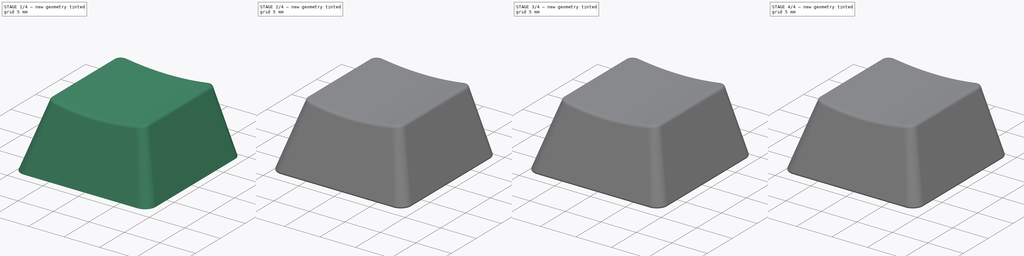
[diagram: build sequence overview — one tinted view per stage of 4, left to right]
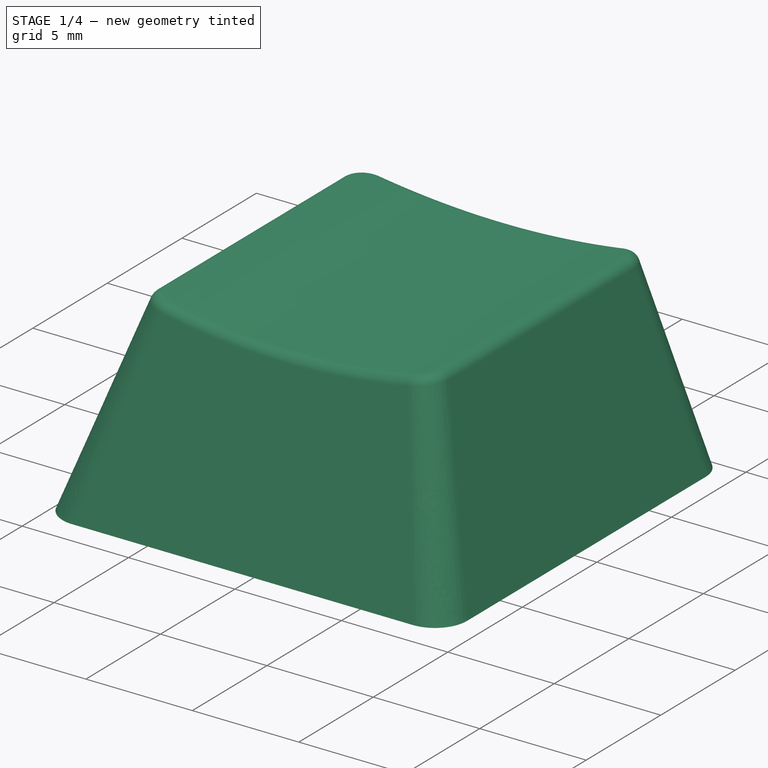
[diagram: stage 1 of 4 — iso view after this stage's code; geometry added in this stage tinted green]
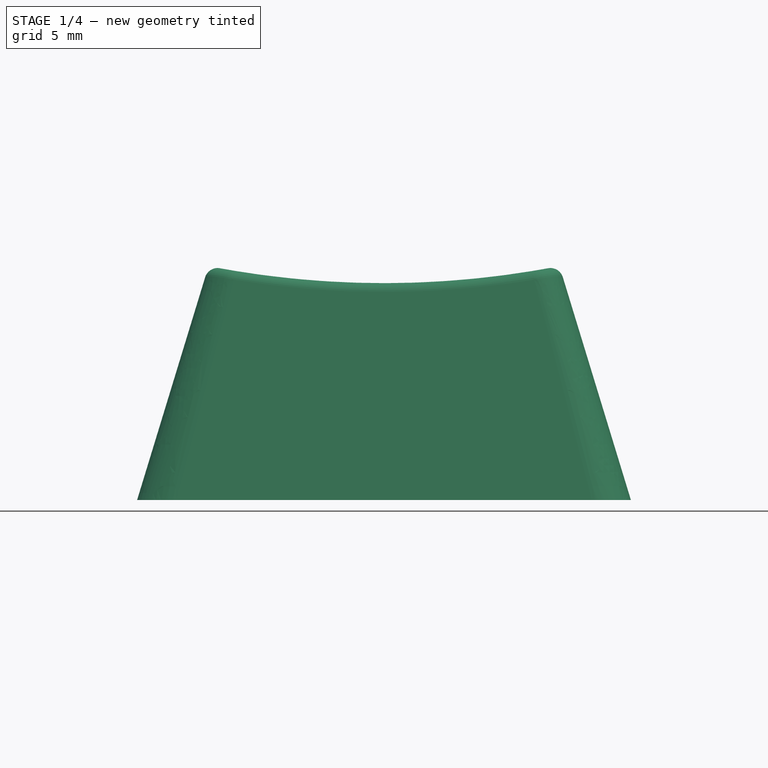
[diagram: stage 1 of 4 — front view after this stage's code; geometry added in this stage tinted green]
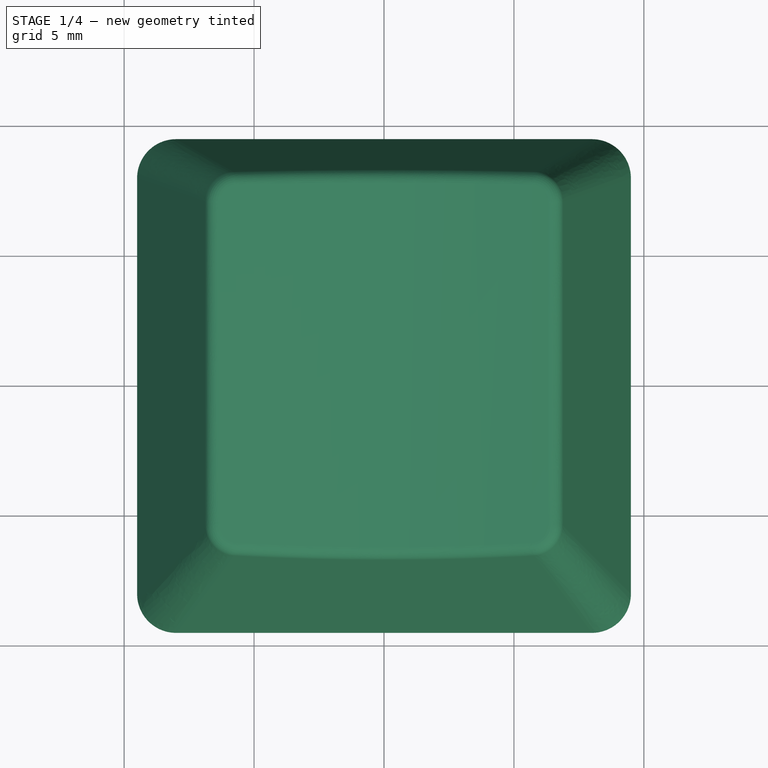
[diagram: stage 1 of 4 — top view after this stage's code; geometry added in this stage tinted green]
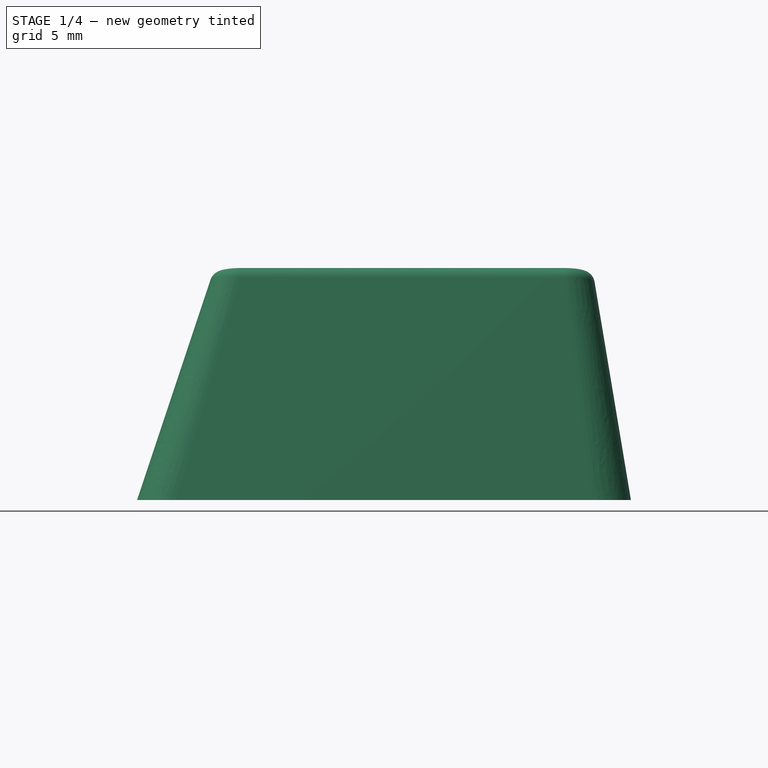
[diagram: stage 1 of 4 — right view after this stage's code; geometry added in this stage tinted green]
FCSTD DOCUMENT  (FreeCAD 0.18R4 (GitTag))
Label: keycap
License: All rights reserved
LicenseURL: http://en.wikipedia.org/wiki/All_rights_reserved
objects: Sketcher::SketchObject×7, PartDesign::Fillet×5, PartDesign::Plane×3, PartDesign::Pocket×2, PartDesign::AdditiveLoft×1, PartDesign::SubtractiveLoft×1, PartDesign::Pad×1, PartDesign::Mirrored×1, PartDesign::Body×1
note: 27 computed .brp shape members not serialized (recipe doc carries the construction recipe); baked Part::Feature solids carry a one-line shape summary decoded from their .brp

FEATURE [Sketcher::SketchObject] Sketch
  MapMode = 5
  Support = -> [XY_Plane]
  sketch-geometry (8):
    g0: LineSegment StartX=-8 StartY=9.5 StartZ=0 EndX=8 EndY=9.5 EndZ=0
    g1: ArcOfCircle CenterX=8 CenterY=8 CenterZ=0 NormalX=0 NormalY=0 NormalZ=1 AngleXU=0 Radius=1.5 StartAngle=2e-16 EndAngle=1.5708
    g2: LineSegment StartX=9.5 StartY=8 StartZ=0 EndX=9.5 EndY=-8 EndZ=0
    g3: ArcOfCircle CenterX=8 CenterY=-8 CenterZ=0 NormalX=0 NormalY=0 NormalZ=1 AngleXU=0 Radius=1.5 StartAngle=4.71239 EndAngle=6.28319
    g4: LineSegment StartX=8 StartY=-9.5 StartZ=0 EndX=-8 EndY=-9.5 EndZ=0
    g5: ArcOfCircle CenterX=-8 CenterY=-8 CenterZ=0 NormalX=0 NormalY=0 NormalZ=1 AngleXU=0 Radius=1.5 StartAngle=3.14159 EndAngle=4.71239
    g6: LineSegment StartX=-9.5 StartY=-8 StartZ=0 EndX=-9.5 EndY=8 EndZ=0
    g7: ArcOfCircle CenterX=-8 CenterY=8 CenterZ=0 NormalX=0 NormalY=0 NormalZ=1 AngleXU=0 Radius=1.5 StartAngle=1.5708 EndAngle=3.14159
  constraints (18):
    c: Tangent(g0,g1) = 1.5708
    c: Vertical(g2)
    c: Tangent(g2,g3) = 1.5708
    c: Horizontal(g4)
    c: Tangent(g4,g5) = 1.5708
    c: Tangent(g6,g7) = 1.5708
    c: Tangent(g7,g0) = 1.5708
    c: Tangent(g1,g2) = 1.5708
    c: Tangent(g3,g4) = 1.5708
    c: Tangent(g5,g6) = 1.5708
    c: Equal(g5,g3)
    c: Equal(g6,g4)
    c: Equal(g4,g2)
    c: Equal(g2,g0)
    c: Symmetric(g5,g6,g-1)
    c: Symmetric(g0,g0,g-2)
    c: Radius(g1) = 1.5
    c: DistanceY(g3,g0) = 19
FEATURE [PartDesign::Plane] DatumPlane
  AttachmentOffset = pos=(0,0,9) rot=(0,0,1;0rad)
  Length = 24
  MapMode = 5
  Placement = pos=(0,0,9) rot=(0,0,1;0rad)
  ResizeMode = 0
  Support = -> [XY_Plane]
  Width = 24
FEATURE [Sketcher::SketchObject] Sketch001
  ExternalGeometry = -> [Sketch]
  MapMode = 5
  Placement = pos=(0,0,9) rot=(0,0,1;0rad)
  Support = -> [DatumPlane]
  sketch-geometry (8):
    g0: LineSegment StartX=-5.65 StartY=8 StartZ=0 EndX=5.65 EndY=8 EndZ=0
    g1: ArcOfCircle CenterX=5.65 CenterY=6.9 CenterZ=0 NormalX=0 NormalY=0 NormalZ=1 AngleXU=0 Radius=1.1 StartAngle=4e-16 EndAngle=1.5708
    g2: LineSegment StartX=6.75 StartY=6.9 StartZ=0 EndX=6.75 EndY=-5.4 EndZ=0
    g3: ArcOfCircle CenterX=5.65 CenterY=-5.4 CenterZ=0 NormalX=0 NormalY=0 NormalZ=1 AngleXU=0 Radius=1.1 StartAngle=4.71239 EndAngle=6.28319
    g4: LineSegment StartX=5.65 StartY=-6.5 StartZ=0 EndX=-5.65 EndY=-6.5 EndZ=0
    g5: ArcOfCircle CenterX=-5.65 CenterY=-5.4 CenterZ=0 NormalX=0 NormalY=0 NormalZ=1 AngleXU=0 Radius=1.1 StartAngle=3.14159 EndAngle=4.71239
    g6: LineSegment StartX=-6.75 StartY=-5.4 StartZ=0 EndX=-6.75 EndY=6.9 EndZ=0
    g7: ArcOfCircle CenterX=-5.65 CenterY=6.9 CenterZ=0 NormalX=0 NormalY=0 NormalZ=1 AngleXU=0 Radius=1.1 StartAngle=1.5708 EndAngle=3.14159
  constraints (19):
    c: Tangent(g0,g1) = 1.5708
    c: Vertical(g2)
    c: Tangent(g2,g3) = 1.5708
    c: Horizontal(g4)
    c: Tangent(g4,g5) = 1.5708
    c: Vertical(g6)
    c: Tangent(g6,g7) = 1.5708
    c: Tangent(g0,g7) = 1.5708
    c: Tangent(g1,g2) = 1.5708
    c: Tangent(g5,g6) = 1.5708
    c: Tangent(g3,g4) = 1.5708
    c: Radius(g7) = 1.1
    c: Equal(g7,g1)
    c: Equal(g1,g3)
    c: Equal(g0,g4)
    c: Symmetric(g0,g0,g-2)
    c: DistanceY(g3,g0) = 14.5
    c: DistanceX(g6,g1) = 13.5
    c: DistanceY(g0,g-3) = 1.5
FEATURE [PartDesign::AdditiveLoft] AdditiveLoft
  Closed = false
  Profile = -> Sketch
  Ruled = false
  Sections = -> [Sketch001]
FEATURE [Sketcher::SketchObject] Sketch002
  ExternalGeometry = -> [AdditiveLoft]
  MapMode = 5
  Placement = pos=(0,0,0) rot=(1,0,0;1.5708rad)
  Support = -> [XZ_Plane]
  sketch-geometry (1):
    g0: Circle CenterX=0 CenterY=43.3429 CenterZ=0 NormalX=0 NormalY=0 NormalZ=1 AngleXU=0 Radius=35
  constraints (4):
    c: PointOnObject(g0,g-2)
    c: PointOnObject(g-4,g0)
    c: Radius(g0) = 35
    c: DistanceY(g-4) = 9
FEATURE [PartDesign::Pocket] Pocket
  BaseFeature = -> AdditiveLoft
  Length = 12
  Length2 = 100
  Profile = -> Sketch002
  Type = 4
FEATURE [PartDesign::Fillet] Fillet
  Base = -> Pocket [Edge18]
  BaseFeature = -> Pocket
  Radius = 0.5
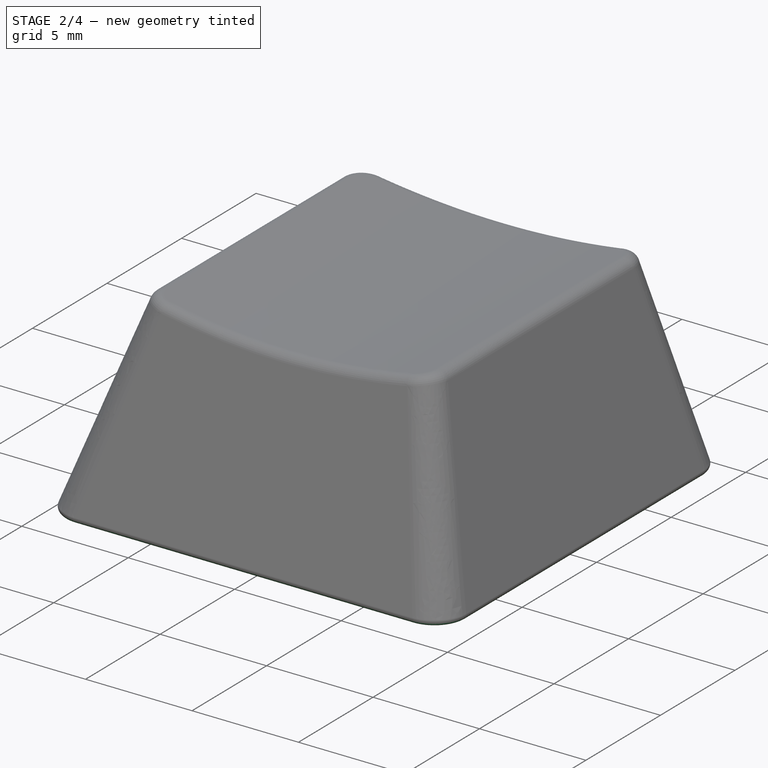
[diagram: stage 2 of 4 — iso view after this stage's code; geometry added in this stage tinted green]
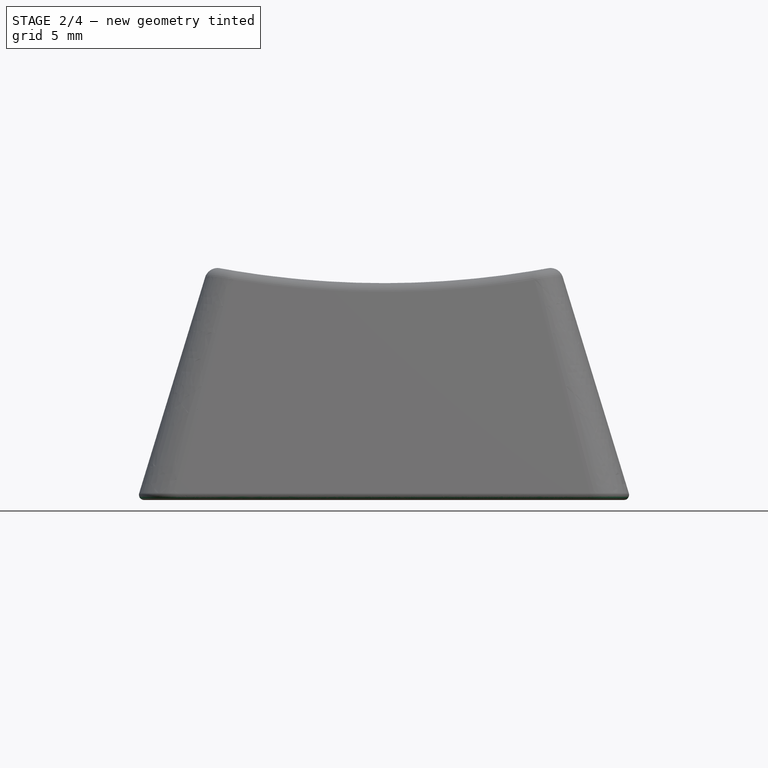
[diagram: stage 2 of 4 — front view after this stage's code; geometry added in this stage tinted green]
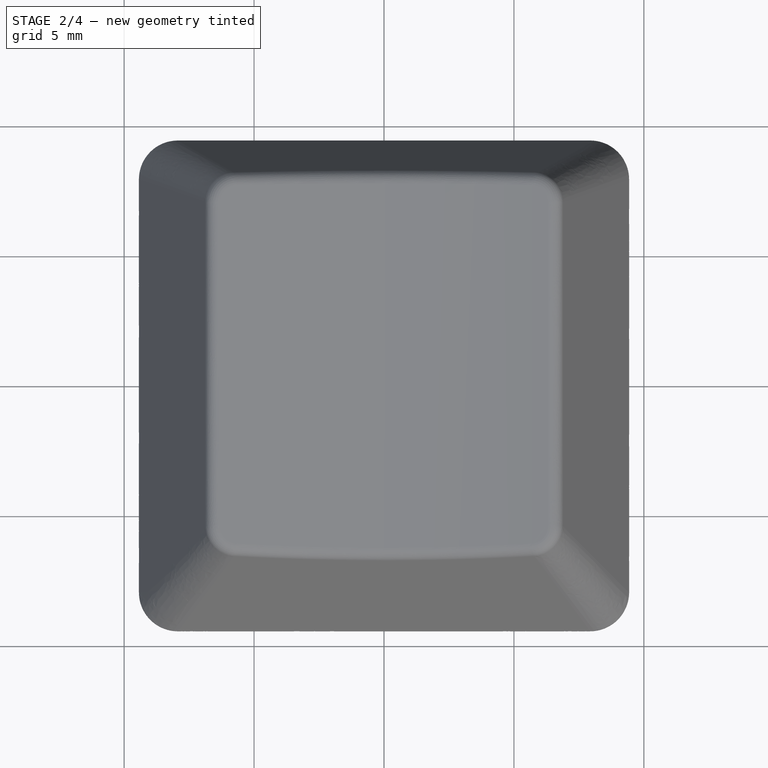
[diagram: stage 2 of 4 — top view after this stage's code; geometry added in this stage tinted green]
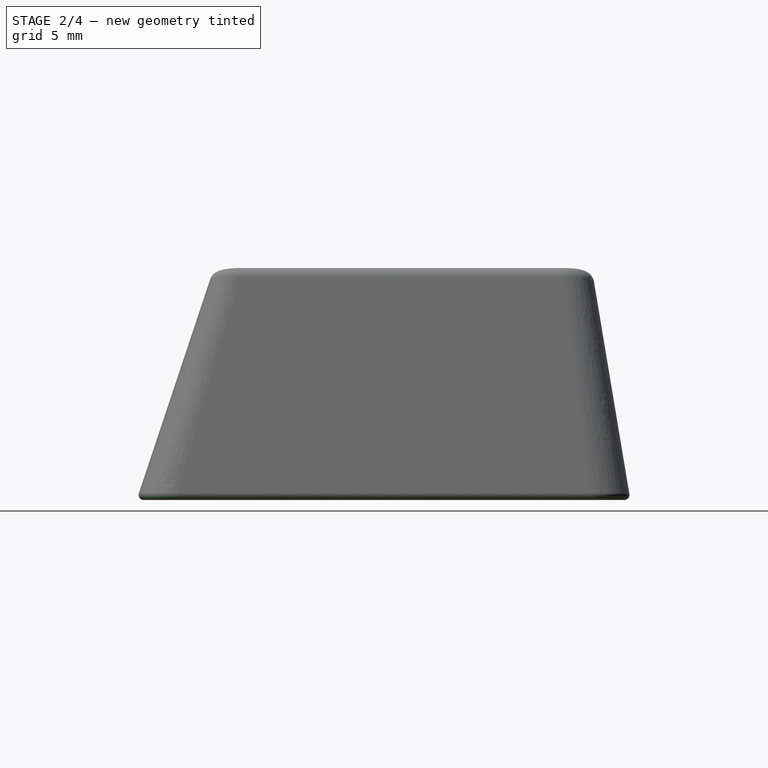
[diagram: stage 2 of 4 — right view after this stage's code; geometry added in this stage tinted green]
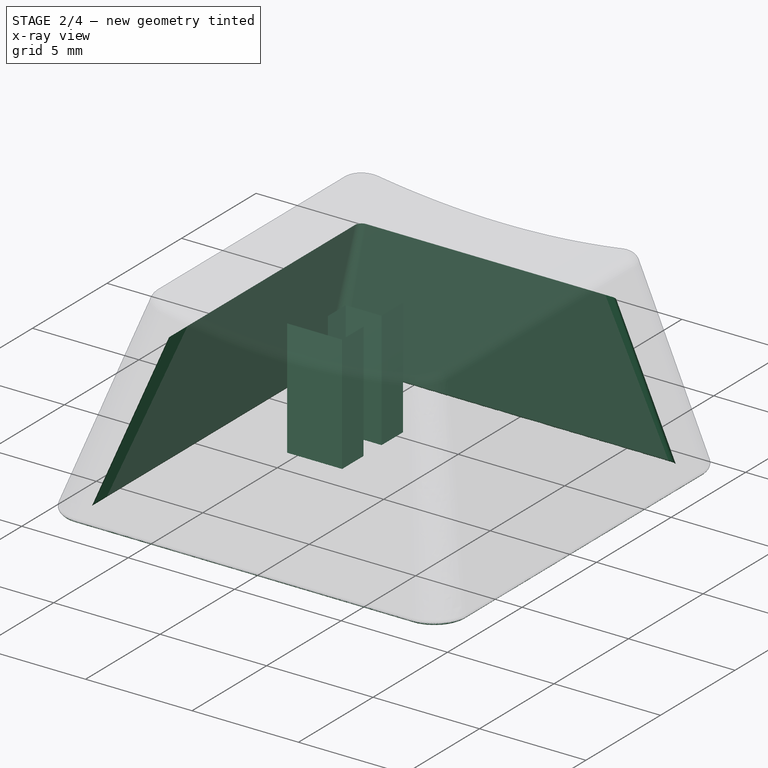
[diagram: stage 2 of 4 — x-ray composite at the iso view; earlier geometry ghosted, this stage's added geometry solid]
FEATURE [Sketcher::SketchObject] Sketch003
  ExternalGeometry = -> [Fillet]
  MapMode = 5
  Placement = pos=(0,0,0) rot=(1,0,0;3.14159rad)
  Support = -> [Fillet]
  sketch-geometry (8):
    g0: LineSegment StartX=7.75 StartY=8.25 StartZ=0 EndX=-7.75 EndY=8.25 EndZ=0
    g1: ArcOfCircle CenterX=-7.75 CenterY=7.75 CenterZ=0 NormalX=0 NormalY=0 NormalZ=1 AngleXU=0 Radius=0.5 StartAngle=1.5708 EndAngle=3.14159
    g2: LineSegment StartX=-8.25 StartY=7.75 StartZ=0 EndX=-8.25 EndY=-7.75 EndZ=0
    g3: ArcOfCircle CenterX=-7.75 CenterY=-7.75 CenterZ=0 NormalX=0 NormalY=0 NormalZ=1 AngleXU=0 Radius=0.5 StartAngle=3.14159 EndAngle=4.71239
    g4: LineSegment StartX=-7.75 StartY=-8.25 StartZ=0 EndX=7.75 EndY=-8.25 EndZ=0
    g5: ArcOfCircle CenterX=7.75 CenterY=-7.75 CenterZ=0 NormalX=0 NormalY=0 NormalZ=1 AngleXU=0 Radius=0.5 StartAngle=4.71239 EndAngle=6.28319
    g6: LineSegment StartX=8.25 StartY=-7.75 StartZ=0 EndX=8.25 EndY=7.75 EndZ=0
    g7: ArcOfCircle CenterX=7.75 CenterY=7.75 CenterZ=0 NormalX=0 NormalY=0 NormalZ=1 AngleXU=0 Radius=0.5 StartAngle=0 EndAngle=1.5708
  constraints (18):
    c: Tangent(g0,g1) = -1.5708
    c: Tangent(g2,g3) = -1.5708
    c: Horizontal(g4)
    c: Tangent(g4,g5) = -1.5708
    c: Vertical(g6)
    c: Tangent(g6,g7) = -1.5708
    c: Tangent(g7,g0) = -1.5708
    c: Tangent(g1,g2) = -1.5708
    c: Tangent(g3,g4) = -1.5708
    c: Tangent(g5,g6) = -1.5708
    c: Equal(g1,g7)
    c: Equal(g7,g5)
    c: Equal(g5,g3)
    c: Radius(g1) = 0.5
    c: Symmetric(g0,g0,g-2)
    c: Symmetric(g2,g1,g-1)
    c: DistanceX(g1,g6) = 16.5
    c: DistanceY(g3,g0) = 16.5
FEATURE [PartDesign::Plane] DatumPlane001
  AttachmentOffset = pos=(0,0,-7) rot=(0,0,1;0rad)
  Length = 24
  MapMode = 2
  Placement = pos=(0,0,7) rot=(1,0,0;3.14159rad)
  ResizeMode = 0
  Support = -> [Sketch003]
  Width = 24
FEATURE [Sketcher::SketchObject] Sketch004
  MapMode = 5
  Placement = pos=(0,0,7) rot=(1,0,0;3.14159rad)
  Support = -> [DatumPlane001]
  sketch-geometry (8):
    g0: LineSegment StartX=-5.8 StartY=5.925 StartZ=0 EndX=5.8 EndY=5.925 EndZ=0
    g1: ArcOfCircle CenterX=5.8 CenterY=5.625 CenterZ=0 NormalX=0 NormalY=0 NormalZ=1 AngleXU=0 Radius=0.3 StartAngle=-9e-16 EndAngle=1.5708
    g2: LineSegment StartX=6.1 StartY=5.625 StartZ=0 EndX=6.1 EndY=-6.8 EndZ=0
    g3: ArcOfCircle CenterX=5.8 CenterY=-6.8 CenterZ=0 NormalX=0 NormalY=0 NormalZ=1 AngleXU=0 Radius=0.3 StartAngle=4.71239 EndAngle=6.28319
    g4: LineSegment StartX=5.8 StartY=-7.1 StartZ=0 EndX=-5.8 EndY=-7.1 EndZ=0
    g5: ArcOfCircle CenterX=-5.8 CenterY=-6.8 CenterZ=0 NormalX=0 NormalY=0 NormalZ=1 AngleXU=0 Radius=0.3 StartAngle=3.14159 EndAngle=4.71239
    g6: LineSegment StartX=-6.1 StartY=-6.8 StartZ=0 EndX=-6.1 EndY=5.625 EndZ=0
    g7: ArcOfCircle CenterX=-5.8 CenterY=5.625 CenterZ=0 NormalX=0 NormalY=0 NormalZ=1 AngleXU=0 Radius=0.3 StartAngle=1.5708 EndAngle=3.14159
  constraints (19):
    c: Horizontal(g0)
    c: Tangent(g0,g1) = 1.5708
    c: Vertical(g2)
    c: Tangent(g2,g3) = 1.5708
    c: Tangent(g4,g5) = 1.5708
    c: Vertical(g6)
    c: Tangent(g6,g7) = 1.5708
    c: Tangent(g7,g0) = 1.5708
    c: Tangent(g1,g2) = 1.5708
    c: Tangent(g3,g4) = 1.5708
    c: Tangent(g5,g6) = 1.5708
    c: Radius(g7) = 0.3
    c: Equal(g1,g7)
    c: Equal(g7,g5)
    c: Equal(g5,g3)
    c: Symmetric(g4,g3,g-2)
    c: DistanceX(g5,g2) = 12.2
    c: DistanceY(g0) = 5.925
    c: DistanceY(g4) = -7.1
FEATURE [PartDesign::SubtractiveLoft] SubtractiveLoft
  BaseFeature = -> Fillet
  Closed = false
  Profile = -> Sketch003
  Ruled = false
  Sections = -> [Sketch004]
FEATURE [PartDesign::Fillet] Fillet001
  Base = -> SubtractiveLoft [Edge23,Edge3]
  BaseFeature = -> SubtractiveLoft
  Radius = 0.2
FEATURE [Sketcher::SketchObject] Sketch005
  MapMode = 5
  Placement = pos=(0,0,7) rot=(1,0,0;3.14159rad)
  Support = -> [Fillet001]
  sketch-geometry (8):
    g0: LineSegment StartX=-0.52 StartY=2.05 StartZ=0 EndX=-0.52 EndY=0.6 EndZ=0
    g1: LineSegment StartX=-0.52 StartY=0.6 StartZ=0 EndX=-2.2 EndY=0.6 EndZ=0
    g2: LineSegment StartX=-2.2 StartY=0.6 StartZ=0 EndX=-2.2 EndY=-0.6 EndZ=0
    g3: LineSegment StartX=-2.2 StartY=-0.6 StartZ=0 EndX=-0.52 EndY=-0.6 EndZ=0
    g4: LineSegment StartX=-0.52 StartY=-0.6 StartZ=0 EndX=-0.52 EndY=-2.05 EndZ=0
    g5: LineSegment StartX=-0.52 StartY=-2.05 StartZ=0 EndX=-3.1 EndY=-2.05 EndZ=0
    g6: LineSegment StartX=-3.1 StartY=-2.05 StartZ=0 EndX=-3.1 EndY=2.05 EndZ=0
    g7: LineSegment StartX=-3.1 StartY=2.05 StartZ=0 EndX=-0.52 EndY=2.05 EndZ=0
  constraints (22):
    c: Vertical(g0)
    c: Coincident(g0,g1)
    c: Horizontal(g1)
    c: Coincident(g1,g2)
    c: Coincident(g2,g3)
    c: Horizontal(g3)
    c: Coincident(g3,g4)
    c: Vertical(g4)
    c: Coincident(g4,g5)
    c: Horizontal(g5)
    c: Coincident(g5,g6)
    c: Coincident(g6,g7)
    c: Coincident(g7,g0)
    c: Horizontal(g7)
    c: Symmetric(g2,g1,g-1)
    c: Symmetric(g5,g6,g-1)
    c: DistanceX(g3,g-1) = 0.52
    c: DistanceY(g3,g0) = 1.2
    c: Vertical(g0,g3)
    c: DistanceY(g6,g6) = 4.1
    c: DistanceX(g6) = -3.1
    c: DistanceX(g2) = -2.2
FEATURE [PartDesign::Pad] Pad
  BaseFeature = -> Fillet001
  Length = 5.5
  Length2 = 100
  Profile = -> Sketch005
  Type = 0
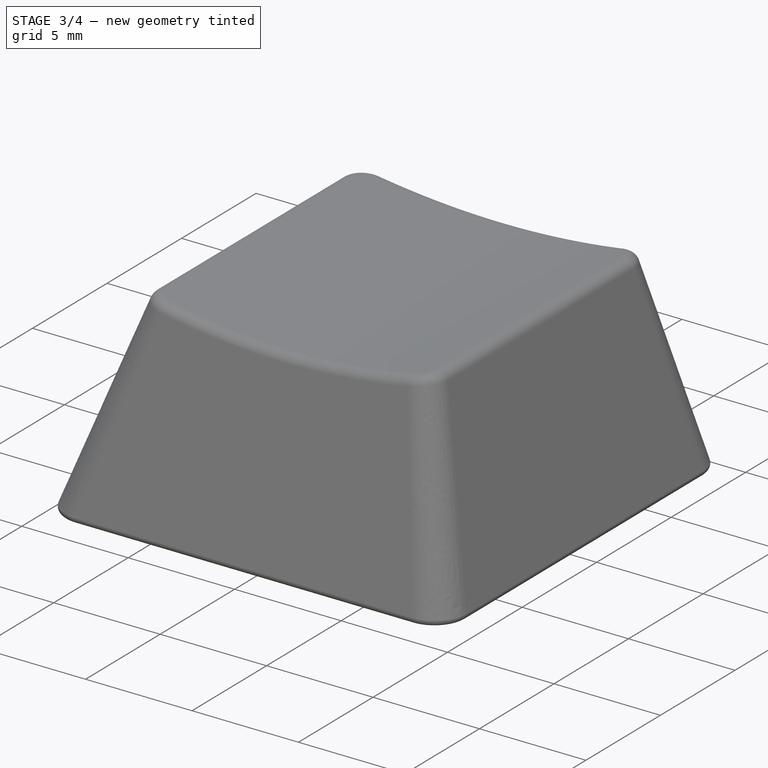
[diagram: stage 3 of 4 — iso view after this stage's code; geometry added in this stage tinted green]
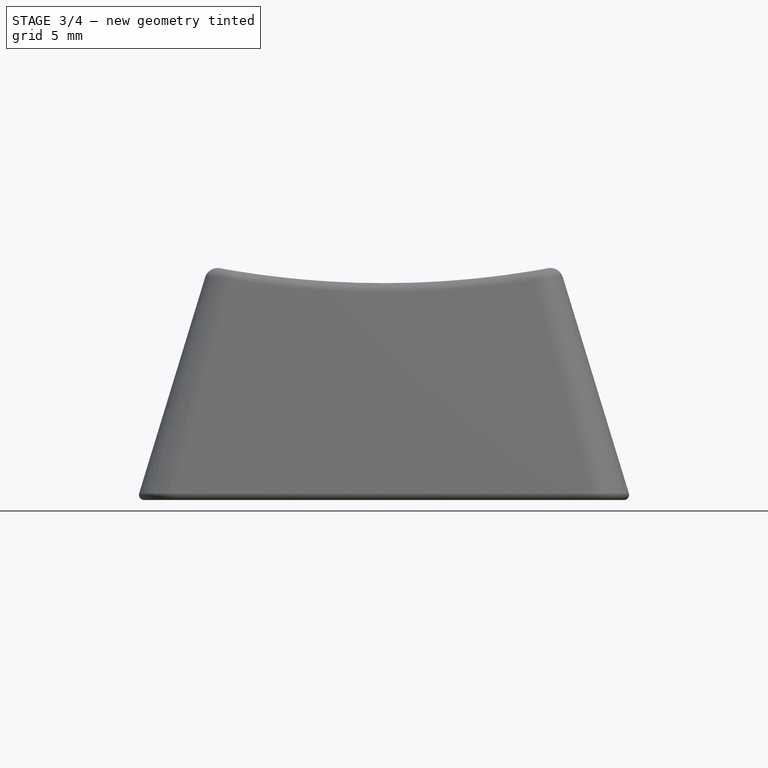
[diagram: stage 3 of 4 — front view after this stage's code; geometry added in this stage tinted green]
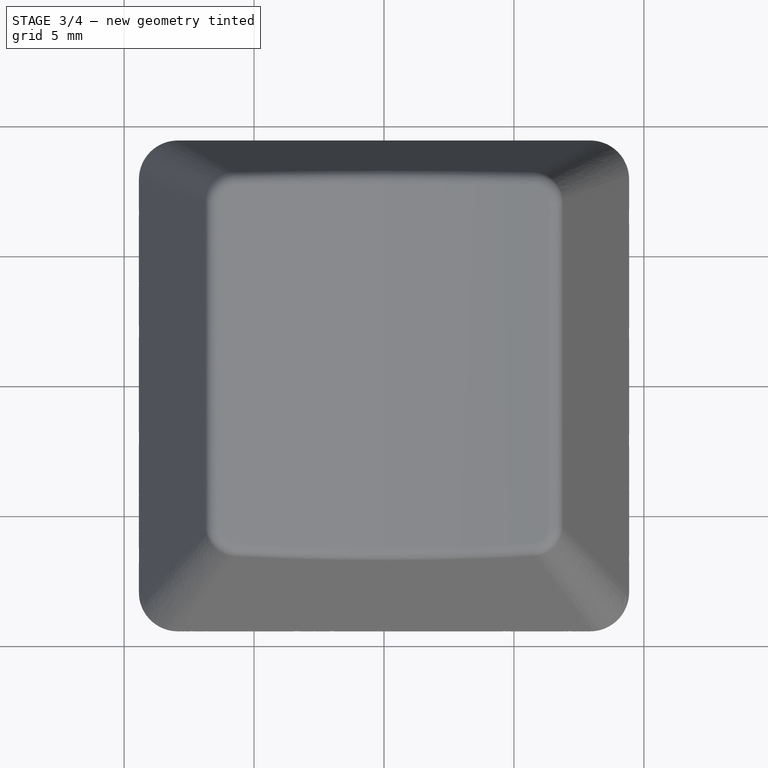
[diagram: stage 3 of 4 — top view after this stage's code; geometry added in this stage tinted green]
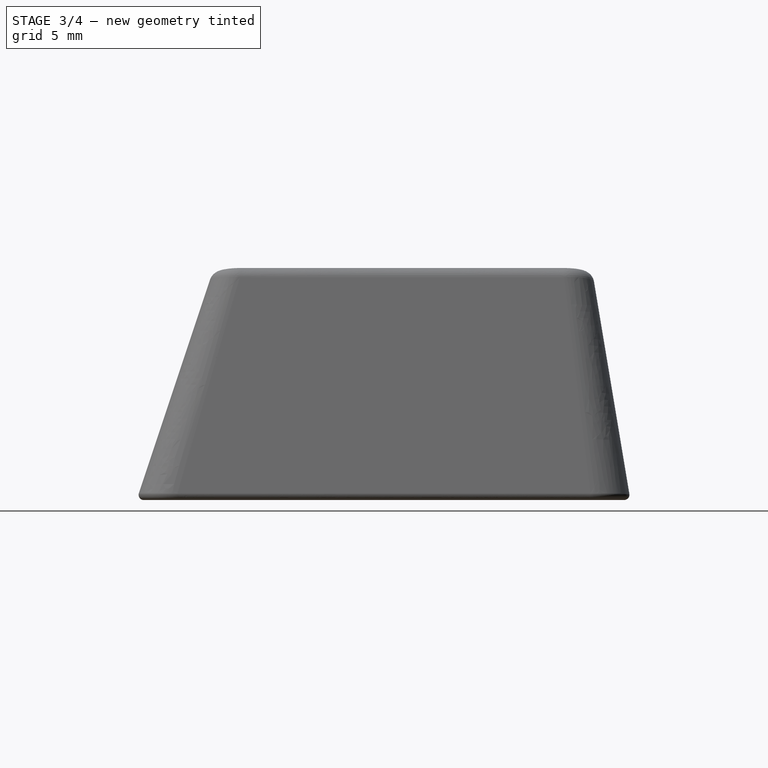
[diagram: stage 3 of 4 — right view after this stage's code; geometry added in this stage tinted green]
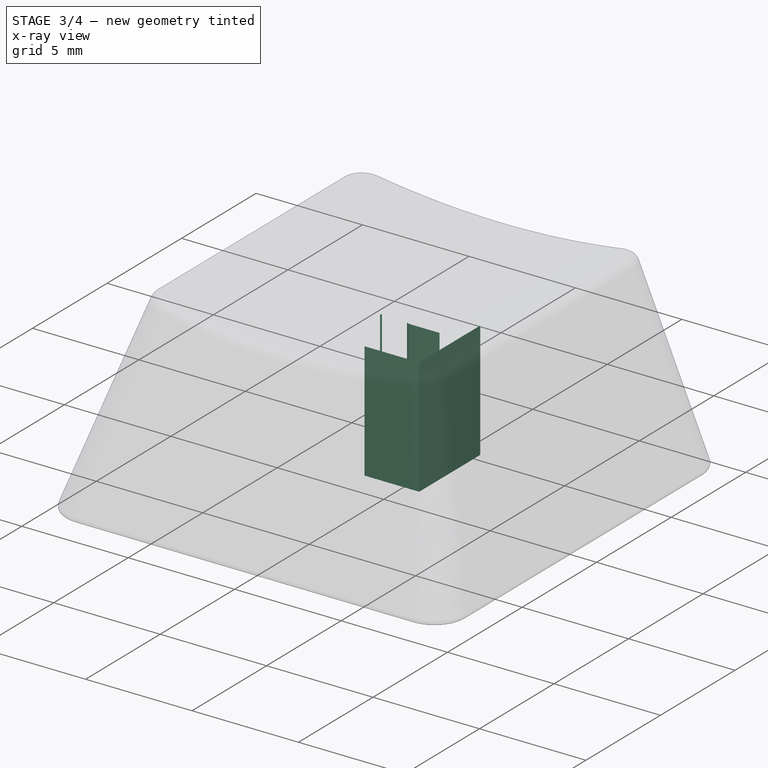
[diagram: stage 3 of 4 — x-ray composite at the iso view; earlier geometry ghosted, this stage's added geometry solid]
FEATURE [PartDesign::Mirrored] Mirrored
  BaseFeature = -> Pad
  MirrorPlane = -> Sketch005 [V_Axis]
  Originals = -> [Pad]
FEATURE [PartDesign::Fillet] Fillet002
  Base = -> Mirrored [Edge142,Edge136,Edge114,Edge126]
  BaseFeature = -> Mirrored
  Radius = 0.3
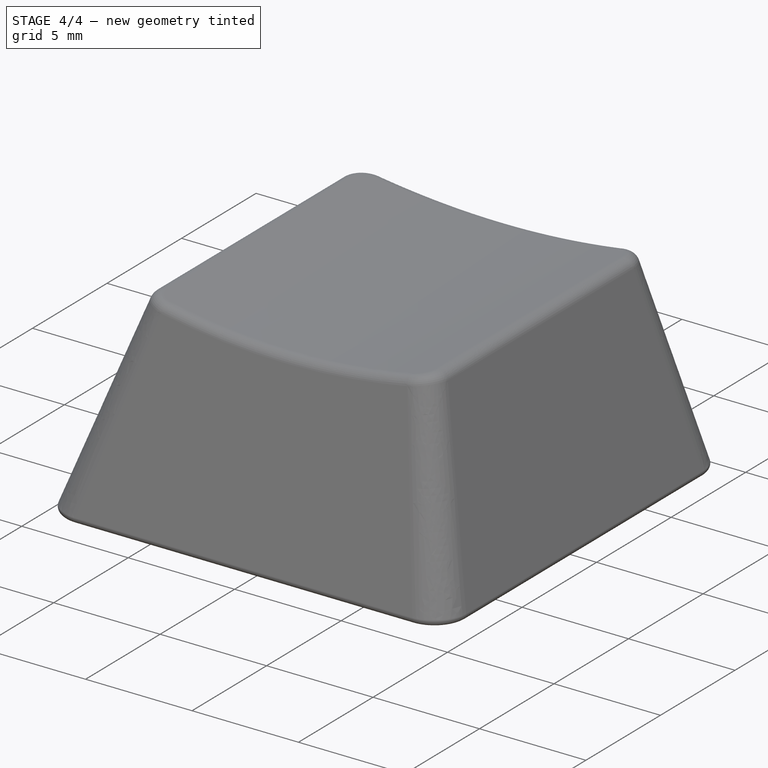
[diagram: stage 4 of 4 — iso view after this stage's code; geometry added in this stage tinted green]
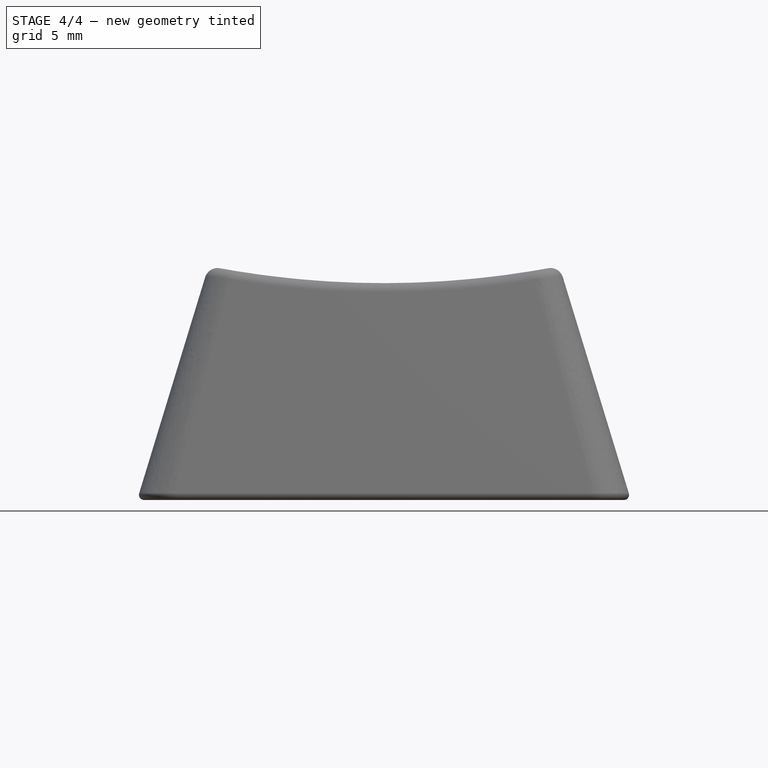
[diagram: stage 4 of 4 — front view after this stage's code; geometry added in this stage tinted green]
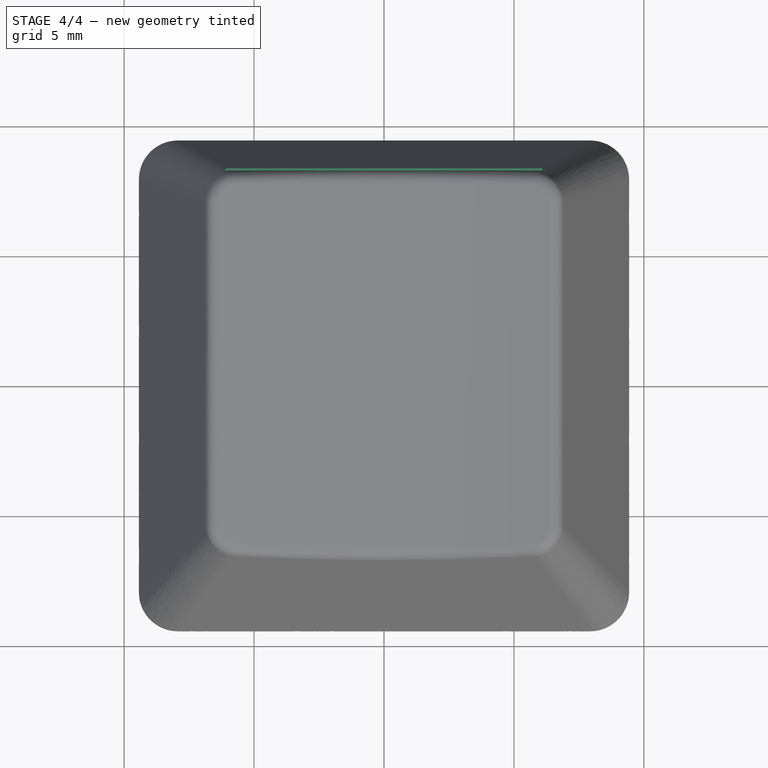
[diagram: stage 4 of 4 — top view after this stage's code; geometry added in this stage tinted green]
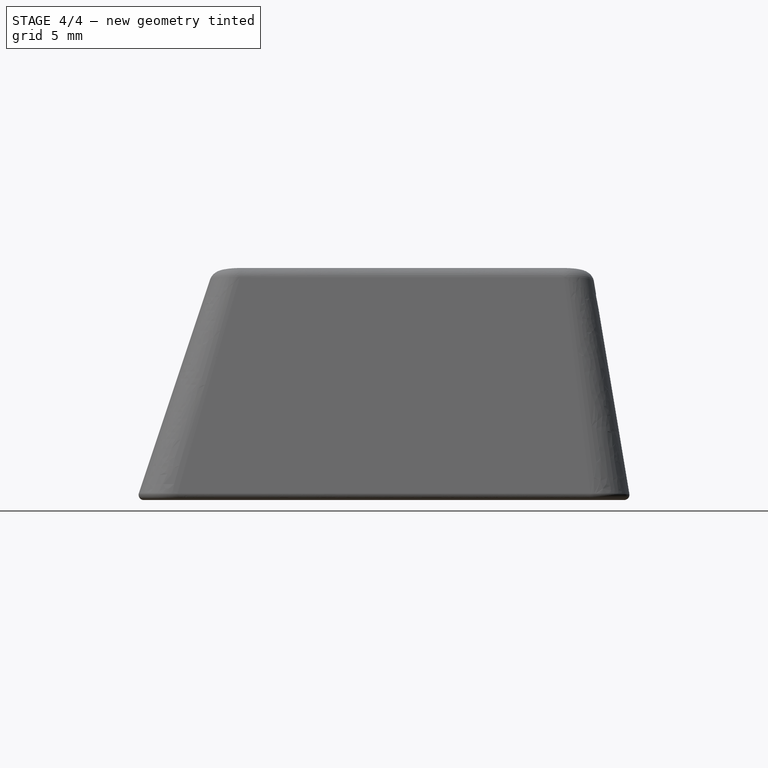
[diagram: stage 4 of 4 — right view after this stage's code; geometry added in this stage tinted green]
FEATURE [PartDesign::Fillet] Fillet003
  Base = -> Fillet002 [Edge25,Edge23,Edge21,Edge3,Edge5,Edge7,Edge34,Edge38,Edge70,Edge74]
  BaseFeature = -> Fillet002
  Radius = 0.5
FEATURE [PartDesign::Fillet] Fillet004
  Base = -> Fillet003 [Edge39,Edge52,Edge62,Edge104,Edge94,Edge81]
  BaseFeature = -> Fillet003
  Radius = 0.2
FEATURE [PartDesign::Plane] DatumPlane002
  AttachmentOffset = pos=(0,0,-9) rot=(0,0,1;0rad)
  Length = 24
  MapMode = 5
  Placement = pos=(0,0,9) rot=(1,0,0;3.14159rad)
  ResizeMode = 0
  Support = -> [Fillet004]
  Width = 24
FEATURE [Sketcher::SketchObject] Sketch006
  ExternalGeometry = -> [Fillet004]
  MapMode = 5
  Placement = pos=(0,2.05,0) rot=(0,0.707107,0.707107;3.14159rad)
  Support = -> [Fillet004]
  sketch-geometry (4):
    g0: LineSegment StartX=-6.1 StartY=7.9 StartZ=0 EndX=6.1 EndY=7.9 EndZ=0
    g1: LineSegment StartX=6.1 StartY=7.9 StartZ=0 EndX=6.1 EndY=7.4 EndZ=0
    g2: LineSegment StartX=6.1 StartY=7.4 StartZ=0 EndX=-6.1 EndY=7.4 EndZ=0
    g3: LineSegment StartX=-6.1 StartY=7.4 StartZ=0 EndX=-6.1 EndY=7.9 EndZ=0
  constraints (11):
    c: Coincident(g0,g1)
    c: Coincident(g1,g2)
    c: Coincident(g2,g3)
    c: Coincident(g3,g0)
    c: Horizontal(g2)
    c: Vertical(g1)
    c: Vertical(g3)
    c: Symmetric(g0,g0,g-2)
    c: Vertical(g-5,g1)
    c: DistanceY(g-5,g1) = 0.4
    c: DistanceY(g1,g1) = 0.5
FEATURE [PartDesign::Pocket] Pocket001
  BaseFeature = -> Fillet004
  Length = 8
  Length2 = 100
  Profile = -> Sketch006
  Type = 4
FEATURE [PartDesign::Body] Body
  Group = -> [Sketch,DatumPlane,Sketch001,AdditiveLoft,Sketch002,Pocket,Fillet,Sketch003,DatumPlane001,Sketch004,SubtractiveLoft,Fillet001,Sketch005,Pad,Mirrored,Fillet002,Fillet003,Fillet004,DatumPlane002,Sketch006,Pocket001]
  Origin = -> Origin
  Tip = -> Pocket001
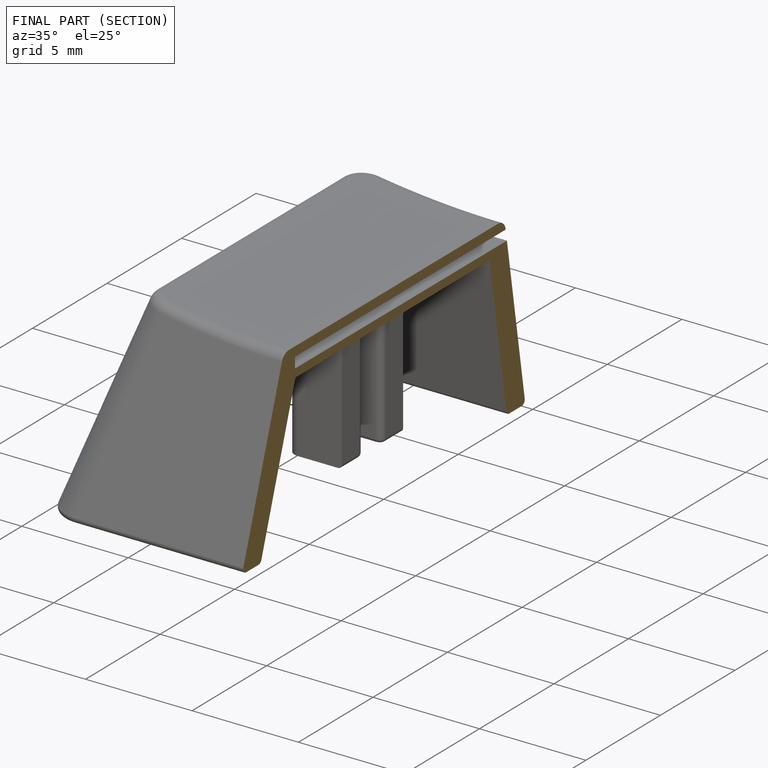
[diagram: finished part — half-section view (interior)]
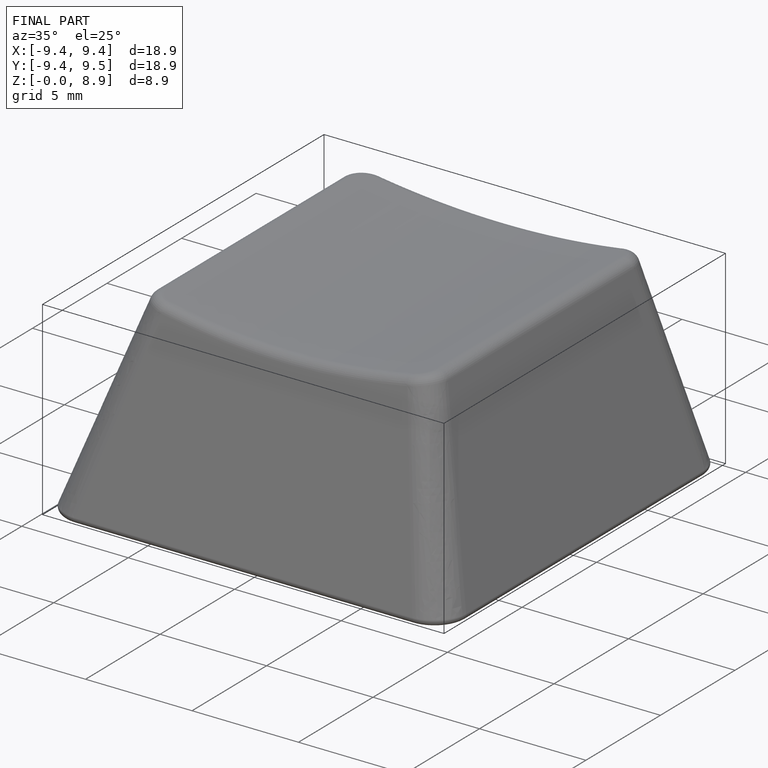
[diagram: finished part — iso view with bounding-box wireframe]
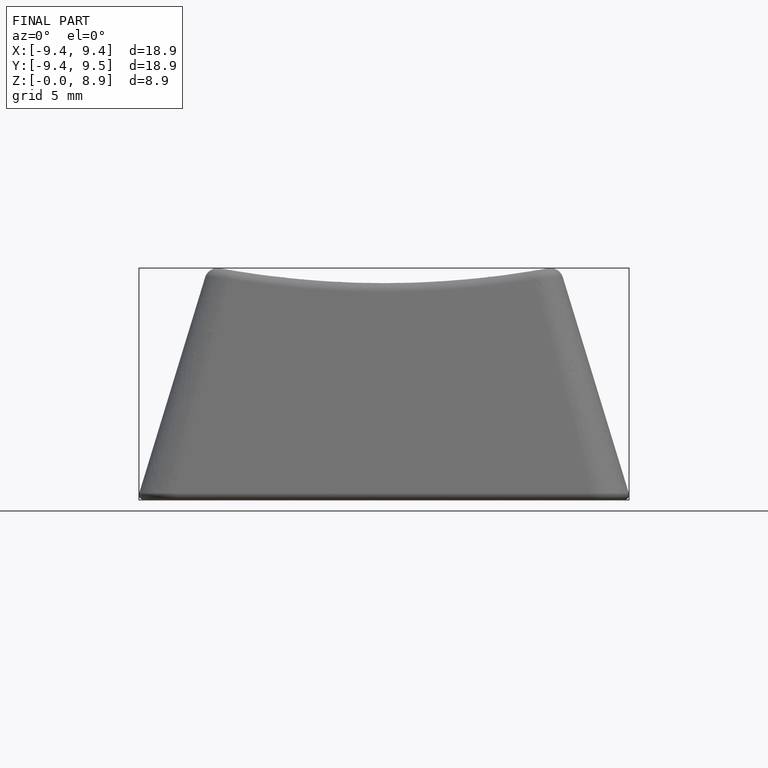
[diagram: finished part — front view with bounding-box wireframe]
